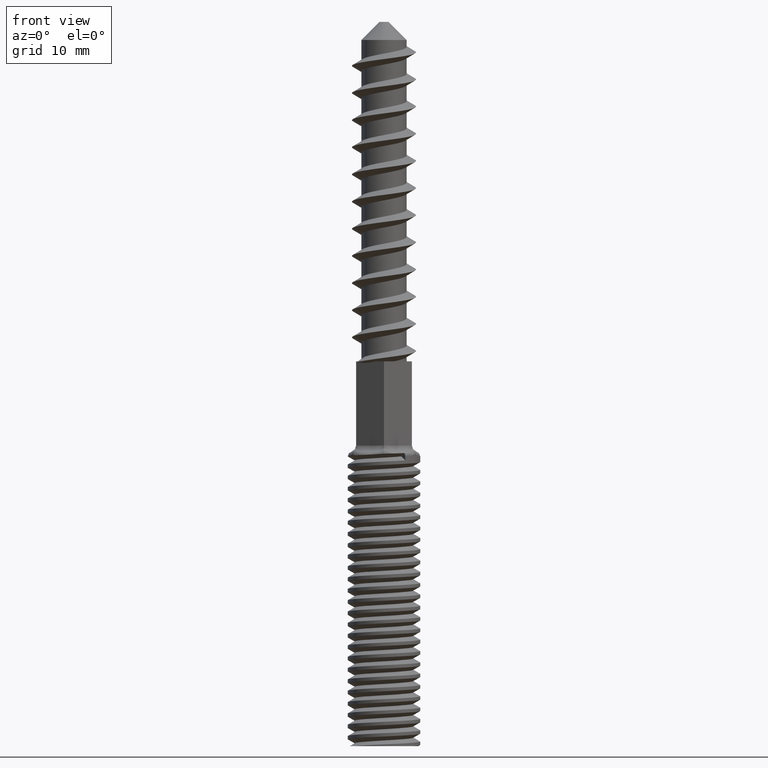
[diagram: clean part render]
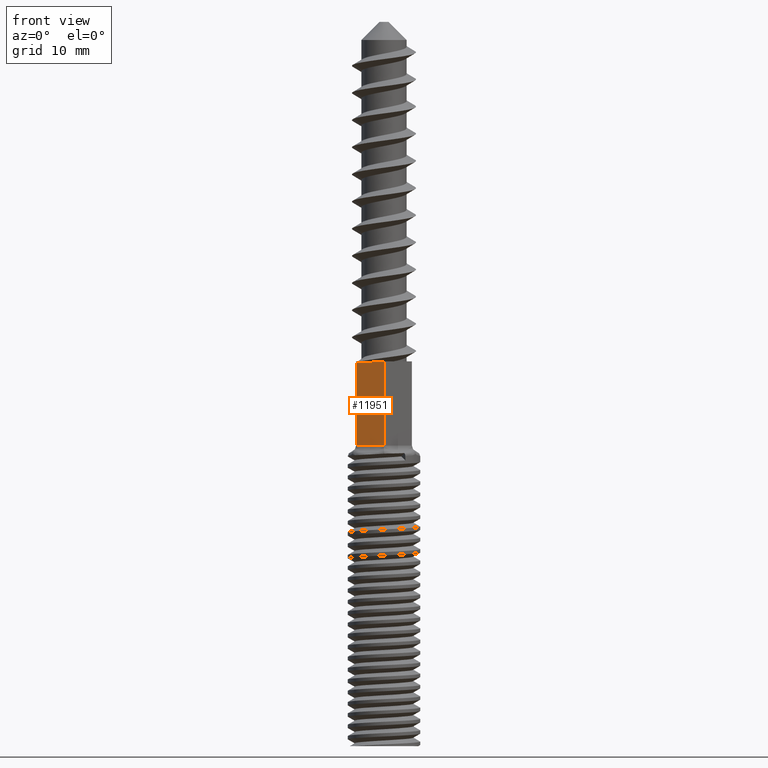
[diagram: same view with one face highlighted and labeled with its STEP entity id]
A machine part, front view. The second image highlights one B-rep face of the part: STEP entity #11951.
In plain terms, the highlighted planar face has unit normal (0.5, 0.866, 0).
Its self-contained STEP definition (entity closure, byte-faithful):
#2 = ORIENTED_EDGE ( 'NONE', *, *, #3095, .T. ) ;
#205 = AXIS2_PLACEMENT_3D ( 'NONE', #16370, #10864, #2543 ) ;
#627 = DIRECTION ( 'NONE',  ( -0.0000000000000000000, -0.0000000000000000000, 1.000000000000000000 ) ) ;
#954 = CARTESIAN_POINT ( 'NONE',  ( -1.169889689624321200, -2.874563872773229900, -37.55223434133540600 ) ) ;
#1102 = PLANE ( 'NONE',  #205 ) ;
#1173 = ORIENTED_EDGE ( 'NONE', *, *, #9358, .T. ) ;
#1303 = ORIENTED_EDGE ( 'NONE', *, *, #6497, .F. ) ;
#1370 = VERTEX_POINT ( 'NONE', #8573 ) ;
#1763 = VECTOR ( 'NONE', #8095, 1000.000000000000000 ) ;
#2062 = VERTEX_POINT ( 'NONE', #15318 ) ;
#2270 = VERTEX_POINT ( 'NONE', #14800 ) ;
#2315 = CARTESIAN_POINT ( 'NONE',  ( -2.727958889040111900, -1.975012201074456200, -37.67531697215961400 ) ) ;
#2543 = DIRECTION ( 'NONE',  ( -0.8660254037844380400, 0.5000000000000010000, 0.0000000000000000000 ) ) ;
#2666 = CARTESIAN_POINT ( 'NONE',  ( 0.0000000000000000000, -3.550000000000001200, -46.79289321881345400 ) ) ;
#3095 = EDGE_CURVE ( 'NONE', #2062, #2270, #3120, .T. ) ;
#3120 = LINE ( 'NONE', #14455, #6865 ) ;
#4789 = DIRECTION ( 'NONE',  ( -0.8660254037844380400, 0.5000000000000010000, 0.0000000000000000000 ) ) ;
#5329 = CARTESIAN_POINT ( 'NONE',  ( -3.074390183434762200, -1.774999999999993500, -47.50000000000000000 ) ) ;
#5462 = CARTESIAN_POINT ( 'NONE',  ( -2.049593455623557800, -2.366666666666441500, -46.79289321881347500 ) ) ;
#5564 = LINE ( 'NONE', #5329, #1763 ) ;
#6497 = EDGE_CURVE ( 'NONE', #1370, #11677, #5564, .T. ) ;
#6865 = VECTOR ( 'NONE', #4789, 1000.000000000000100 ) ;
#7037 = VECTOR ( 'NONE', #627, 1000.000000000000000 ) ;
#7670 = CARTESIAN_POINT ( 'NONE',  ( -3.074367234973196100, -1.775039745794766600, -37.60692588216583900 ) ) ;
#7954 = CARTESIAN_POINT ( 'NONE',  ( -1.861954032705046300, -2.475000337999030200, -37.67903711652993300 ) ) ;
#8095 = DIRECTION ( 'NONE',  ( -0.0000000000000000000, -0.0000000000000000000, 1.000000000000000000 ) ) ;
#8573 = CARTESIAN_POINT ( 'NONE',  ( -3.074390183434762200, -1.774999999999993500, -46.79289321881346800 ) ) ;
#8797 = ORIENTED_EDGE ( 'NONE', *, *, #14571, .F. ) ;
#9018 = B_SPLINE_CURVE_WITH_KNOTS ( 'NONE', 3,
 ( #12048, #2315, #16210, #7954, #17602, #9315, #954, #10708 ),
 .UNSPECIFIED., .F., .F.,
 ( 4, 2, 2, 4 ),
 ( 0.0000000000000000000, 0.001199976014602254000, 0.001799964021903380800, 0.002399952029204507600 ),
 .UNSPECIFIED. ) ;
#9315 = CARTESIAN_POINT ( 'NONE',  ( -1.342262591070510800, -2.775044331721185900, -37.59591770857044700 ) ) ;
#9358 = EDGE_CURVE ( 'NONE', #17117, #2062, #14366, .T. ) ;
#9783 = ORIENTED_EDGE ( 'NONE', *, *, #17242, .T. ) ;
#10708 = CARTESIAN_POINT ( 'NONE',  ( -0.9997842566488552900, -2.972774290292233200, -37.50000000000000000 ) ) ;
#10864 = DIRECTION ( 'NONE',  ( 0.5000000000000010000, 0.8660254037844380400, 0.0000000000000000000 ) ) ;
#10999 = CARTESIAN_POINT ( 'NONE',  ( -1.024796727811978500, -2.958333333333106600, -46.79289321881346800 ) ) ;
#11677 = VERTEX_POINT ( 'NONE', #7670 ) ;
#11951 = ADVANCED_FACE ( 'NONE', ( #12455 ), #1102, .F. ) ;
#12048 = CARTESIAN_POINT ( 'NONE',  ( -3.074367234973196100, -1.775039745794766600, -37.60692588216583900 ) ) ;
#12446 = B_SPLINE_CURVE_WITH_KNOTS ( 'NONE', 3,
 ( #17884, #5462, #10999, #2666 ),
 .UNSPECIFIED., .F., .F.,
 ( 4, 4 ),
 ( 0.0000000000000000000, 1.000000000000000000 ),
 .UNSPECIFIED. ) ;
#12455 = FACE_OUTER_BOUND ( 'NONE', #17486, .T. ) ;
#13291 = CARTESIAN_POINT ( 'NONE',  ( 0.0000000000000000000, -3.550000000000001200, -46.79289321881345400 ) ) ;
#14366 = LINE ( 'NONE', #17293, #7037 ) ;
#14455 = CARTESIAN_POINT ( 'NONE',  ( 0.0000000000000000000, -3.550000000000001200, -37.50000000000000000 ) ) ;
#14571 = EDGE_CURVE ( 'NONE', #11677, #2270, #9018, .T. ) ;
#14800 = CARTESIAN_POINT ( 'NONE',  ( -0.9997842566488552900, -2.972774290292233200, -37.50000000000000000 ) ) ;
#15318 = CARTESIAN_POINT ( 'NONE',  ( 0.0000000000000000000, -3.550000000000001200, -37.50000000000000000 ) ) ;
#16210 = CARTESIAN_POINT ( 'NONE',  ( -2.381585557849640100, -2.174990937077382600, -37.70438981185788700 ) ) ;
#16370 = CARTESIAN_POINT ( 'NONE',  ( 0.0000000000000000000, -3.550000000000001200, -47.50000000000000000 ) ) ;
#17117 = VERTEX_POINT ( 'NONE', #13291 ) ;
#17242 = EDGE_CURVE ( 'NONE', #1370, #17117, #12446, .T. ) ;
#17293 = CARTESIAN_POINT ( 'NONE',  ( 0.0000000000000000000, -3.550000000000001200, -47.50000000000000000 ) ) ;
#17486 = EDGE_LOOP ( 'NONE', ( #8797, #1303, #9783, #1173, #2 ) ) ;
#17602 = CARTESIAN_POINT ( 'NONE',  ( -1.688732219148144000, -2.575009998684533400, -37.65968666882378100 ) ) ;
#17884 = CARTESIAN_POINT ( 'NONE',  ( -3.074390183434762200, -1.774999999999993500, -46.79289321881346800 ) ) ;